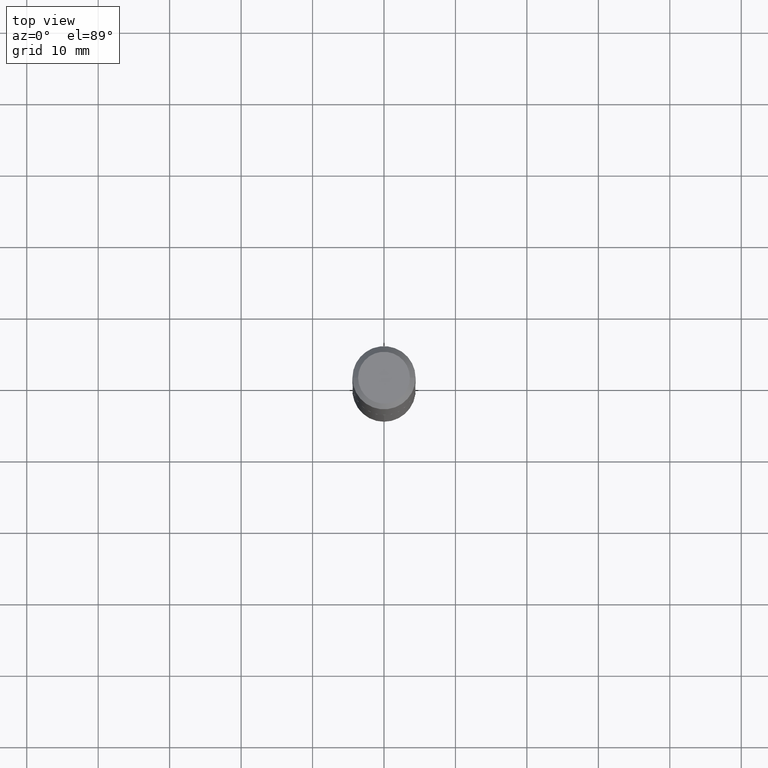
[diagram: clean part render]
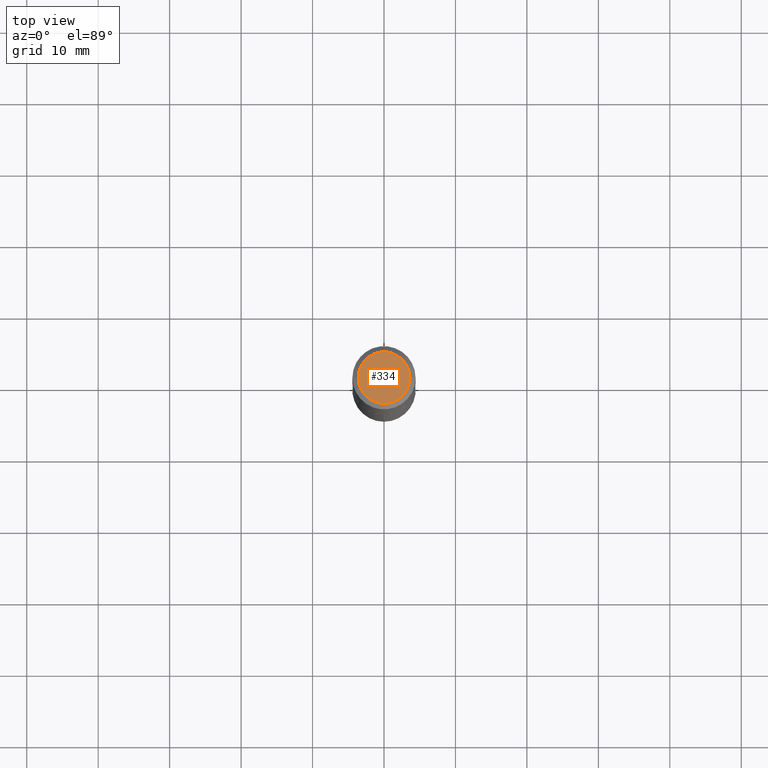
[diagram: same view with one face highlighted and labeled with its STEP entity id]
A machine part, top view. The second image highlights one B-rep face of the part: STEP entity #334.
In plain terms, the highlighted planar face has unit normal (0, -0, -1).
Its self-contained STEP definition (entity closure, byte-faithful):
#1 = EDGE_LOOP ( 'NONE', ( #156, #237 ) ) ;
#7 = DIRECTION ( 'NONE',  ( 2.438088387897960049E-29, -3.491481338843145188E-15, -1.000000000000000000 ) ) ;
#30 = CARTESIAN_POINT ( 'NONE',  ( -1.347675995659193016E-47, 1.924124150653632284E-33, 5.510910596163073378E-19 ) ) ;
#47 = EDGE_CURVE ( 'NONE', #340, #300, #275, .T. ) ;
#60 = DIRECTION ( 'NONE',  ( -2.445468806185136597E-29, 3.491481338843145583E-15, 1.000000000000000000 ) ) ;
#73 = AXIS2_PLACEMENT_3D ( 'NONE', #30, #60, #238 ) ;
#94 = CARTESIAN_POINT ( 'NONE',  ( -6.738379978295965082E-48, 9.620620753268161422E-34, 2.755455298081536689E-19 ) ) ;
#118 = DIRECTION ( 'NONE',  ( 1.000000000000000000, -6.982962677686265922E-15, 4.876191187177803928E-29 ) ) ;
#156 = ORIENTED_EDGE ( 'NONE', *, *, #270, .T. ) ;
#157 = DIRECTION ( 'NONE',  ( -1.000000000000000000, 6.982962677686265922E-15, -4.876176775795935793E-29 ) ) ;
#183 = CARTESIAN_POINT ( 'NONE',  ( -0.1427499999999999603, 1.051372318159137798E-15, 5.510910596091454784E-19 ) ) ;
#191 = FACE_OUTER_BOUND ( 'NONE', #1, .T. ) ;
#204 = CIRCLE ( 'NONE', #354, 0.1427499999999999603 ) ;
#237 = ORIENTED_EDGE ( 'NONE', *, *, #47, .T. ) ;
#238 = DIRECTION ( 'NONE',  ( 1.000000000000000000, -6.982962677686265922E-15, 4.876191187177803928E-29 ) ) ;
#270 = EDGE_CURVE ( 'NONE', #300, #340, #204, .T. ) ;
#275 = CIRCLE ( 'NONE', #73, 0.1427499999999999603 ) ;
#283 = PLANE ( 'NONE',  #290 ) ;
#290 = AXIS2_PLACEMENT_3D ( 'NONE', #94, #7, #157 ) ;
#300 = VERTEX_POINT ( 'NONE', #183 ) ;
#306 = DIRECTION ( 'NONE',  ( -2.445468806185136597E-29, 3.491481338843145583E-15, 1.000000000000000000 ) ) ;
#331 = CARTESIAN_POINT ( 'NONE',  ( -1.347675995659193016E-47, 1.924124150653632284E-33, 5.510910596163073378E-19 ) ) ;
#334 = ADVANCED_FACE ( 'NONE', ( #191 ), #283, .F. ) ;
#340 = VERTEX_POINT ( 'NONE', #390 ) ;
#354 = AXIS2_PLACEMENT_3D ( 'NONE', #331, #306, #118 ) ;
#390 = CARTESIAN_POINT ( 'NONE',  ( 0.1427499999999999603, -1.141085766316490663E-15, 5.510910596237823534E-19 ) ) ;